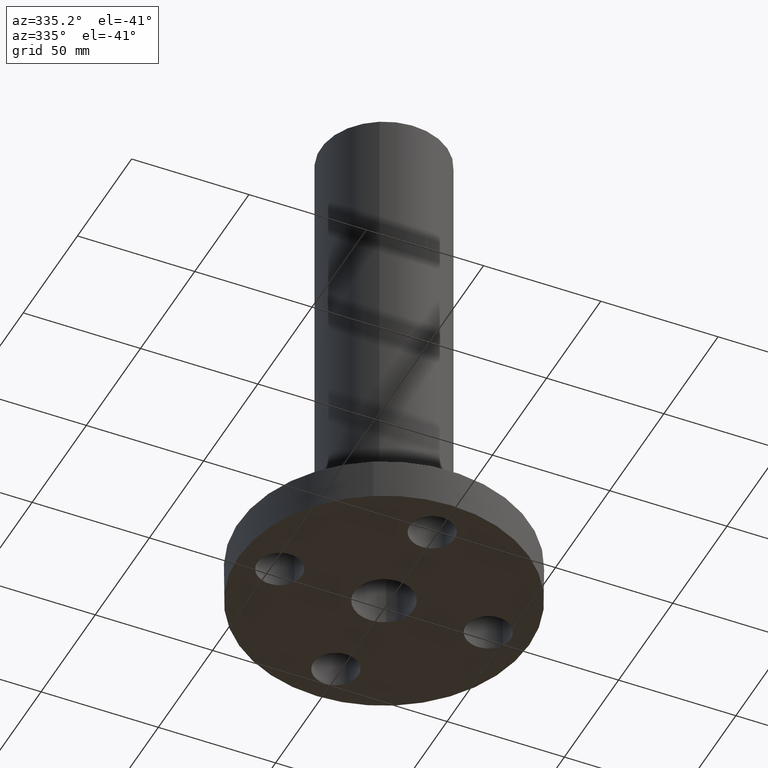
[diagram: clean part render]
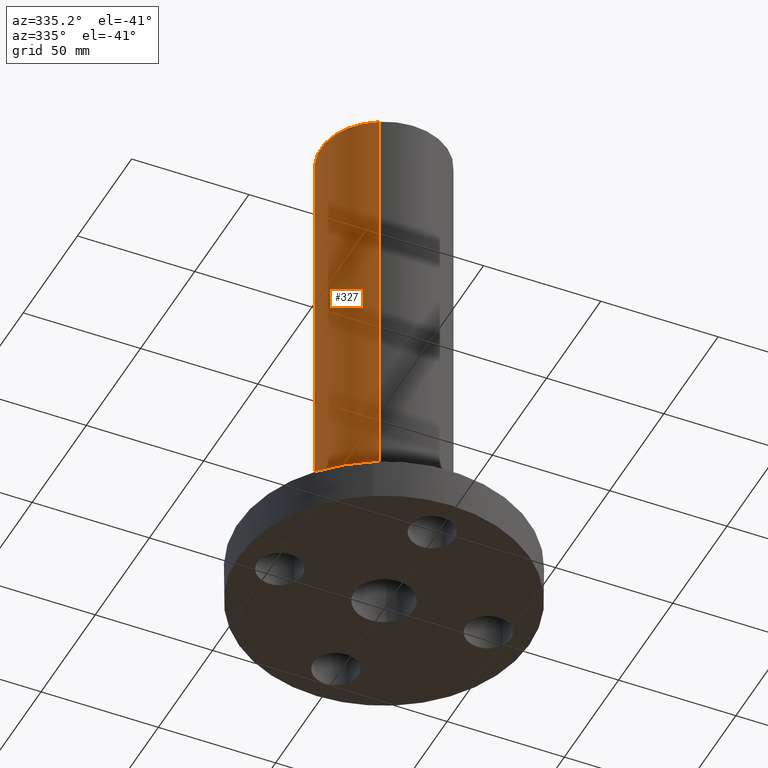
[diagram: same view with one face highlighted and labeled with its STEP entity id]
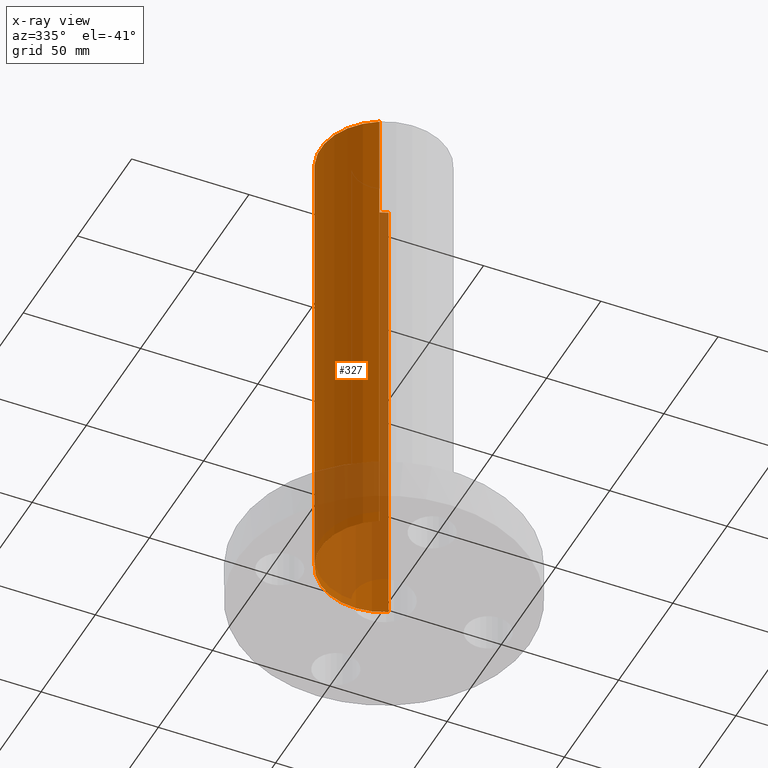
[diagram: x-ray of the same camera — body ghosted, the highlighted face saturated]
A machine part, auxiliary view. The second image highlights one B-rep face of the part: STEP entity #327.
The next image is the same camera in x-ray: the body ghosted, the highlighted face saturated — about 31% of this face is hidden behind the body in this view.
In plain terms, the highlighted cylindrical surface (partial cylindrical patch) has radius 26.924 mm, axis along (0, 0, -1).
Its self-contained STEP definition (entity closure, byte-faithful):
#121=AXIS2_PLACEMENT_3D('Circle Axis2P3D',#119,#120,$) ;
#288=AXIS2_PLACEMENT_3D('Cylinder Axis2P3D',#285,#286,#287) ;
#318=AXIS2_PLACEMENT_3D('Circle Axis2P3D',#316,#317,$) ;
#119=CARTESIAN_POINT('Axis2P3D Location',(0.,0.,0.690000000003)) ;
#123=CARTESIAN_POINT('Vertex',(-0.508191070922,-0.930237515608,0.690000000003)) ;
#125=CARTESIAN_POINT('Vertex',(0.508191070922,0.930237515608,0.690000000003)) ;
#285=CARTESIAN_POINT('Axis2P3D Location',(0.,0.,4.25000000002)) ;
#290=CARTESIAN_POINT('Line Origine',(0.508191070922,0.930237515608,4.72000000002)) ;
#294=CARTESIAN_POINT('Vertex',(0.508191070922,0.930237515608,8.75000000003)) ;
#301=CARTESIAN_POINT('Vertex',(-0.508191070922,-0.930237515608,8.75000000003)) ;
#304=CARTESIAN_POINT('Line Origine',(-0.508191070922,-0.930237515608,4.72000000002)) ;
#316=CARTESIAN_POINT('Axis2P3D Location',(0.,0.,8.75000000003)) ;
#120=DIRECTION('Axis2P3D Direction',(0.,0.,-0.0393700787402)) ;
#286=DIRECTION('Axis2P3D Direction',(0.,0.,-0.0393700787402)) ;
#287=DIRECTION('Axis2P3D XDirection',(-0.0188750212049,-0.0345504945626,0.)) ;
#291=DIRECTION('Vector Direction',(0.,0.,-0.0393700787402)) ;
#305=DIRECTION('Vector Direction',(0.,0.,-0.0393700787402)) ;
#317=DIRECTION('Axis2P3D Direction',(0.,0.,-0.0393700787402)) ;
#292=VECTOR('Line Direction',#291,0.0393700787402) ;
#306=VECTOR('Line Direction',#305,0.0393700787402) ;
#322=ORIENTED_EDGE('',*,*,#127,.F.) ;
#323=ORIENTED_EDGE('',*,*,#308,.T.) ;
#324=ORIENTED_EDGE('',*,*,#320,.T.) ;
#325=ORIENTED_EDGE('',*,*,#296,.F.) ;
#327=ADVANCED_FACE('PartBody',(#326),#289,.T.) ;
#122=CIRCLE('generated circle',#121,1.06) ;
#319=CIRCLE('generated circle',#318,1.06) ;
#289=CYLINDRICAL_SURFACE('generated cylinder',#288,1.06) ;
#127=EDGE_CURVE('',#124,#126,#122,.T.) ;
#296=EDGE_CURVE('',#126,#295,#293,.F.) ;
#308=EDGE_CURVE('',#124,#302,#307,.F.) ;
#320=EDGE_CURVE('',#302,#295,#319,.T.) ;
#321=EDGE_LOOP('',(#322,#323,#324,#325)) ;
#326=FACE_OUTER_BOUND('',#321,.T.) ;
#293=LINE('Line',#290,#292) ;
#307=LINE('Line',#304,#306) ;
#124=VERTEX_POINT('',#123) ;
#126=VERTEX_POINT('',#125) ;
#295=VERTEX_POINT('',#294) ;
#302=VERTEX_POINT('',#301) ;